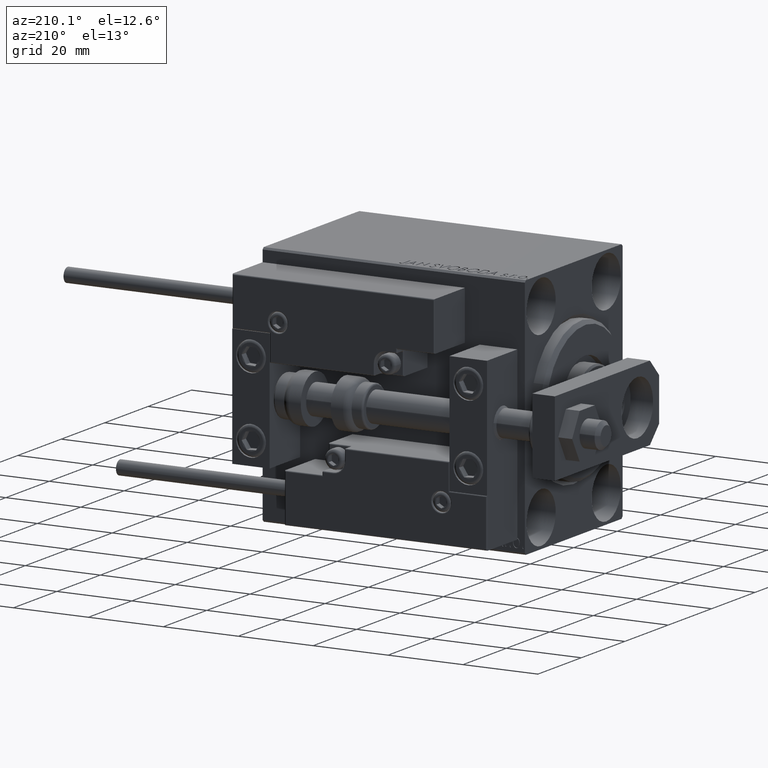
[diagram: clean part render]
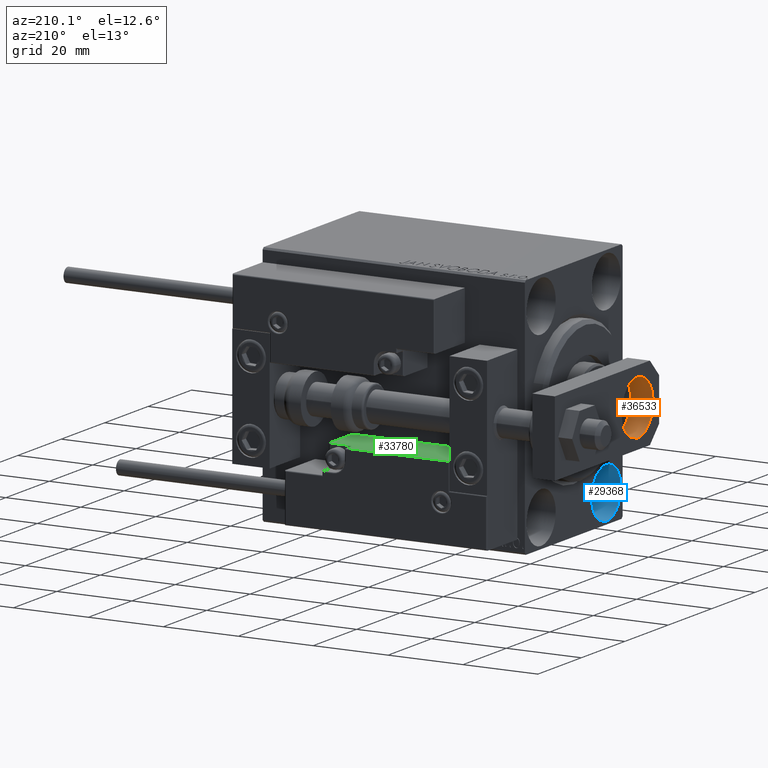
[diagram: same view with three faces highlighted in distinct colors, each labeled with its STEP entity id]
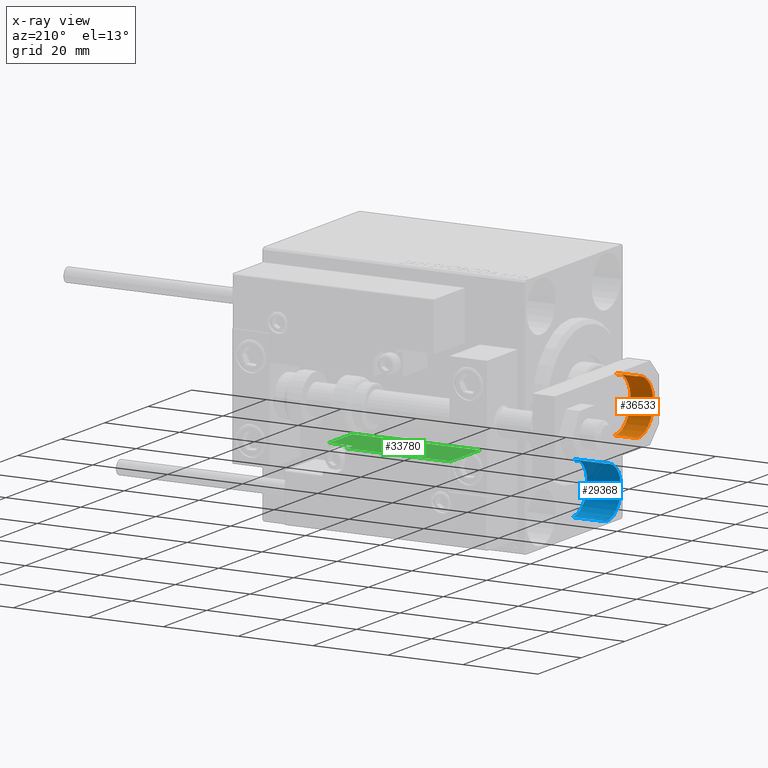
[diagram: x-ray of the same camera — body ghosted, the three highlighted faces saturated]
A machine part, auxiliary view with three faces highlighted in distinct colors.
The next image is the same camera in x-ray (body ghosted, the three faces saturated) — at least one of them is partly hidden behind the body in this view.
Their STEP definitions:

[orange] entity #36533 — the highlighted cylindrical surface (edge-blend (fillet) strip) has radius 7.25 mm, axis along (1, -0, -0).
#1122 = ORIENTED_EDGE ( 'NONE', *, *, #31546, .F. ) ;
#3246 = ORIENTED_EDGE ( 'NONE', *, *, #38588, .T. ) ;
#5588 = CARTESIAN_POINT ( 'NONE',  ( 7.250000000000000000, 10.00000000000000355, 6.000000000000000000 ) ) ;
#11530 = LINE ( 'NONE', #22496, #27409 ) ;
#11976 = DIRECTION ( 'NONE',  ( -1.000000000000000000, 0.000000000000000000, 0.000000000000000000 ) ) ;
#15326 = EDGE_CURVE ( 'NONE', #39872, #22527, #39707, .T. ) ;
#15941 = ORIENTED_EDGE ( 'NONE', *, *, #49616, .F. ) ;
#17327 = CARTESIAN_POINT ( 'NONE',  ( -9.629649721936179265E-32, 10.00000000000000178, 0.000000000000000000 ) ) ;
#17472 = DIRECTION ( 'NONE',  ( 1.000000000000000000, 0.000000000000000000, 0.000000000000000000 ) ) ;
#17830 = DIRECTION ( 'NONE',  ( 0.000000000000000000, 0.000000000000000000, 1.000000000000000000 ) ) ;
#18221 = CARTESIAN_POINT ( 'NONE',  ( -9.629649721936179265E-32, 10.00000000000000178, 6.000000000000000000 ) ) ;
#18667 = CARTESIAN_POINT ( 'NONE',  ( 7.250000000000000000, 10.00000000000000355, 6.000000000000000000 ) ) ;
#20121 = CARTESIAN_POINT ( 'NONE',  ( -9.629649721936179265E-32, 10.00000000000000178, 6.000000000000000000 ) ) ;
#20890 = DIRECTION ( 'NONE',  ( 1.000000000000000000, 0.000000000000000000, 0.000000000000000000 ) ) ;
#21544 = CARTESIAN_POINT ( 'NONE',  ( -7.250000000000000000, 10.00000000000000178, 0.000000000000000000 ) ) ;
#22496 = CARTESIAN_POINT ( 'NONE',  ( -7.250000000000000000, 10.00000000000000178, 6.000000000000000000 ) ) ;
#22527 = VERTEX_POINT ( 'NONE', #28903 ) ;
#25189 = DIRECTION ( 'NONE',  ( -0.000000000000000000, -0.000000000000000000, -1.000000000000000000 ) ) ;
#27409 = VECTOR ( 'NONE', #34684, 1000.000000000000000 ) ;
#28903 = CARTESIAN_POINT ( 'NONE',  ( 7.250000000000000000, 10.00000000000000355, 0.000000000000000000 ) ) ;
#31546 = EDGE_CURVE ( 'NONE', #31974, #22527, #41108, .T. ) ;
#31561 = CYLINDRICAL_SURFACE ( 'NONE', #41684, 7.250000000000000000 ) ;
#31751 = VECTOR ( 'NONE', #25189, 1000.000000000000000 ) ;
#31974 = VERTEX_POINT ( 'NONE', #21544 ) ;
#33015 = AXIS2_PLACEMENT_3D ( 'NONE', #17327, #17830, #20890 ) ;
#33326 = ORIENTED_EDGE ( 'NONE', *, *, #15326, .T. ) ;
#34684 = DIRECTION ( 'NONE',  ( -0.000000000000000000, -0.000000000000000000, -1.000000000000000000 ) ) ;
#35922 = VERTEX_POINT ( 'NONE', #43891 ) ;
#36533 = ADVANCED_FACE ( 'NONE', ( #47090 ), #31561, .F. ) ;
#37050 = DIRECTION ( 'NONE',  ( 0.000000000000000000, 0.000000000000000000, 1.000000000000000000 ) ) ;
#38588 = EDGE_CURVE ( 'NONE', #35922, #39872, #47366, .T. ) ;
#39707 = LINE ( 'NONE', #5588, #31751 ) ;
#39872 = VERTEX_POINT ( 'NONE', #18667 ) ;
#41108 = CIRCLE ( 'NONE', #33015, 7.250000000000000000 ) ;
#41684 = AXIS2_PLACEMENT_3D ( 'NONE', #20121, #47854, #11976 ) ;
#43598 = EDGE_LOOP ( 'NONE', ( #3246, #33326, #1122, #15941 ) ) ;
#43891 = CARTESIAN_POINT ( 'NONE',  ( -7.250000000000000000, 10.00000000000000178, 6.000000000000000000 ) ) ;
#45834 = AXIS2_PLACEMENT_3D ( 'NONE', #18221, #37050, #17472 ) ;
#47090 = FACE_OUTER_BOUND ( 'NONE', #43598, .T. ) ;
#47366 = CIRCLE ( 'NONE', #45834, 7.250000000000000000 ) ;
#47854 = DIRECTION ( 'NONE',  ( -0.000000000000000000, -0.000000000000000000, -1.000000000000000000 ) ) ;
#49616 = EDGE_CURVE ( 'NONE', #35922, #31974, #11530, .T. ) ;

[blue] entity #29368 — the highlighted cylindrical surface (edge-blend (fillet) strip) has radius 6.75 mm, axis along (-1, -0, -0).
#1557 = LINE ( 'NONE', #30031, #25088 ) ;
#1587 = DIRECTION ( 'NONE',  ( 0.000000000000000000, 0.000000000000000000, 1.000000000000000000 ) ) ;
#2304 = DIRECTION ( 'NONE',  ( -1.000000000000000000, -0.000000000000000000, -0.000000000000000000 ) ) ;
#5655 = CARTESIAN_POINT ( 'NONE',  ( 9.000000000000000000, -15.00000000000000355, -25.00000000000000000 ) ) ;
#6262 = VERTEX_POINT ( 'NONE', #21907 ) ;
#7714 = VERTEX_POINT ( 'NONE', #31053 ) ;
#10060 = EDGE_CURVE ( 'NONE', #7714, #6262, #1557, .T. ) ;
#13317 = DIRECTION ( 'NONE',  ( -1.000000000000000000, 0.000000000000000000, 0.000000000000000000 ) ) ;
#13980 = DIRECTION ( 'NONE',  ( 0.000000000000000000, 0.000000000000000000, 1.000000000000000000 ) ) ;
#14237 = DIRECTION ( 'NONE',  ( -1.000000000000000000, -0.000000000000000000, -0.000000000000000000 ) ) ;
#14545 = LINE ( 'NONE', #20980, #34799 ) ;
#15687 = CIRCLE ( 'NONE', #44126, 6.749999999999999112 ) ;
#16894 = DIRECTION ( 'NONE',  ( 0.000000000000000000, 0.000000000000000000, 1.000000000000000000 ) ) ;
#16905 = VERTEX_POINT ( 'NONE', #41778 ) ;
#17120 = DIRECTION ( 'NONE',  ( -1.000000000000000000, 0.000000000000000000, 0.000000000000000000 ) ) ;
#17968 = EDGE_LOOP ( 'NONE', ( #25517, #21030, #19516, #38449 ) ) ;
#18299 = FACE_OUTER_BOUND ( 'NONE', #17968, .T. ) ;
#19516 = ORIENTED_EDGE ( 'NONE', *, *, #27312, .T. ) ;
#20980 = CARTESIAN_POINT ( 'NONE',  ( 9.000000000000000000, -15.00000000000000355, -18.25000000000000355 ) ) ;
#21030 = ORIENTED_EDGE ( 'NONE', *, *, #10060, .T. ) ;
#21867 = CARTESIAN_POINT ( 'NONE',  ( 9.000000000000000000, -15.00000000000000355, -25.00000000000000000 ) ) ;
#21907 = CARTESIAN_POINT ( 'NONE',  ( 0.000000000000000000, -15.00000000000000355, -31.75000000000000000 ) ) ;
#24524 = CARTESIAN_POINT ( 'NONE',  ( 0.000000000000000000, -15.00000000000000355, -25.00000000000000000 ) ) ;
#25088 = VECTOR ( 'NONE', #2304, 1000.000000000000000 ) ;
#25517 = ORIENTED_EDGE ( 'NONE', *, *, #36227, .F. ) ;
#27312 = EDGE_CURVE ( 'NONE', #6262, #16905, #31229, .T. ) ;
#29368 = ADVANCED_FACE ( 'NONE', ( #18299 ), #36633, .F. ) ;
#30031 = CARTESIAN_POINT ( 'NONE',  ( 9.000000000000000000, -15.00000000000000355, -31.75000000000000000 ) ) ;
#31053 = CARTESIAN_POINT ( 'NONE',  ( 9.000000000000000000, -15.00000000000000355, -31.75000000000000000 ) ) ;
#31229 = CIRCLE ( 'NONE', #37737, 6.749999999999999112 ) ;
#33672 = EDGE_CURVE ( 'NONE', #48305, #16905, #14545, .T. ) ;
#34799 = VECTOR ( 'NONE', #37686, 1000.000000000000000 ) ;
#35370 = AXIS2_PLACEMENT_3D ( 'NONE', #21867, #14237, #13980 ) ;
#36227 = EDGE_CURVE ( 'NONE', #7714, #48305, #15687, .T. ) ;
#36633 = CYLINDRICAL_SURFACE ( 'NONE', #35370, 6.749999999999999112 ) ;
#37686 = DIRECTION ( 'NONE',  ( -1.000000000000000000, -0.000000000000000000, -0.000000000000000000 ) ) ;
#37737 = AXIS2_PLACEMENT_3D ( 'NONE', #24524, #13317, #16894 ) ;
#38449 = ORIENTED_EDGE ( 'NONE', *, *, #33672, .F. ) ;
#40671 = CARTESIAN_POINT ( 'NONE',  ( 9.000000000000000000, -15.00000000000000355, -18.25000000000000355 ) ) ;
#41778 = CARTESIAN_POINT ( 'NONE',  ( 0.000000000000000000, -15.00000000000000355, -18.25000000000000355 ) ) ;
#44126 = AXIS2_PLACEMENT_3D ( 'NONE', #5655, #17120, #1587 ) ;
#48305 = VERTEX_POINT ( 'NONE', #40671 ) ;

[green] entity #33780 — the highlighted planar face has unit normal (-0, -0, -1).
#814 = VERTEX_POINT ( 'NONE', #46579 ) ;
#952 = EDGE_CURVE ( 'NONE', #814, #11560, #19584, .T. ) ;
#2076 = CARTESIAN_POINT ( 'NONE',  ( 16.99999999999999289, 3.252606517456513302E-15, 0.000000000000000000 ) ) ;
#2420 = CARTESIAN_POINT ( 'NONE',  ( -16.99999999999999289, 3.252606517456513302E-15, 13.70000000000000107 ) ) ;
#3568 = DIRECTION ( 'NONE',  ( 0.000000000000000000, -0.000000000000000000, 1.000000000000000000 ) ) ;
#4941 = EDGE_CURVE ( 'NONE', #16782, #16595, #8604, .T. ) ;
#5661 = VERTEX_POINT ( 'NONE', #18021 ) ;
#5839 = CARTESIAN_POINT ( 'NONE',  ( 10.70000000000000107, 3.252606517456513302E-15, 13.70000000000000107 ) ) ;
#6020 = CARTESIAN_POINT ( 'NONE',  ( 11.00000000000000000, 3.252606517456513302E-15, 10.69999999999999929 ) ) ;
#6173 = AXIS2_PLACEMENT_3D ( 'NONE', #26280, #11002, #34159 ) ;
#6997 = ORIENTED_EDGE ( 'NONE', *, *, #952, .F. ) ;
#7004 = ORIENTED_EDGE ( 'NONE', *, *, #26912, .T. ) ;
#7494 = ORIENTED_EDGE ( 'NONE', *, *, #50186, .T. ) ;
#8162 = ORIENTED_EDGE ( 'NONE', *, *, #31969, .T. ) ;
#8604 = CIRCLE ( 'NONE', #6173, 0.5999999999999998668 ) ;
#11002 = DIRECTION ( 'NONE',  ( -0.000000000000000000, -1.000000000000000000, -0.000000000000000000 ) ) ;
#11560 = VERTEX_POINT ( 'NONE', #2076 ) ;
#12759 = VECTOR ( 'NONE', #25365, 1000.000000000000000 ) ;
#13003 = ORIENTED_EDGE ( 'NONE', *, *, #34214, .T. ) ;
#15249 = VERTEX_POINT ( 'NONE', #5839 ) ;
#15312 = AXIS2_PLACEMENT_3D ( 'NONE', #16297, #39188, #3568 ) ;
#16297 = CARTESIAN_POINT ( 'NONE',  ( -16.99999999999999289, 3.252606517456513302E-15, 14.00000000000000000 ) ) ;
#16595 = VERTEX_POINT ( 'NONE', #18503 ) ;
#16615 = VECTOR ( 'NONE', #18562, 1000.000000000000000 ) ;
#16782 = VERTEX_POINT ( 'NONE', #31702 ) ;
#17072 = LINE ( 'NONE', #44286, #16615 ) ;
#18021 = CARTESIAN_POINT ( 'NONE',  ( -16.99999999999999289, 3.252606517456513302E-15, 13.70000000000000107 ) ) ;
#18308 = LINE ( 'NONE', #37388, #33950 ) ;
#18503 = CARTESIAN_POINT ( 'NONE',  ( 11.29999999999999893, 3.252606517456513302E-15, 10.69999999999999929 ) ) ;
#18562 = DIRECTION ( 'NONE',  ( 0.000000000000000000, -0.000000000000000000, 1.000000000000000000 ) ) ;
#19584 = LINE ( 'NONE', #43484, #29751 ) ;
#25365 = DIRECTION ( 'NONE',  ( -1.000000000000000000, 0.000000000000000000, -0.000000000000000000 ) ) ;
#25547 = ORIENTED_EDGE ( 'NONE', *, *, #4941, .F. ) ;
#26280 = CARTESIAN_POINT ( 'NONE',  ( 11.29999999999999893, 3.252606517456513302E-15, 11.29999999999999893 ) ) ;
#26912 = EDGE_CURVE ( 'NONE', #16782, #15249, #17072, .T. ) ;
#28899 = DIRECTION ( 'NONE',  ( -1.000000000000000000, 0.000000000000000000, -0.000000000000000000 ) ) ;
#29751 = VECTOR ( 'NONE', #35601, 1000.000000000000000 ) ;
#31214 = VECTOR ( 'NONE', #28899, 1000.000000000000000 ) ;
#31702 = CARTESIAN_POINT ( 'NONE',  ( 10.70000000000000107, 3.252606517456513302E-15, 11.29999999999999893 ) ) ;
#31860 = VERTEX_POINT ( 'NONE', #44710 ) ;
#31969 = EDGE_CURVE ( 'NONE', #814, #16595, #36572, .T. ) ;
#33780 = ADVANCED_FACE ( 'NONE', ( #46831 ), #38694, .F. ) ;
#33950 = VECTOR ( 'NONE', #42895, 1000.000000000000000 ) ;
#33996 = DIRECTION ( 'NONE',  ( -0.000000000000000000, -0.000000000000000000, -1.000000000000000000 ) ) ;
#34159 = DIRECTION ( 'NONE',  ( 0.000000000000000000, 0.000000000000000000, 1.000000000000000000 ) ) ;
#34214 = EDGE_CURVE ( 'NONE', #5661, #31860, #45464, .T. ) ;
#35105 = VECTOR ( 'NONE', #33996, 1000.000000000000000 ) ;
#35601 = DIRECTION ( 'NONE',  ( -0.000000000000000000, -0.000000000000000000, -1.000000000000000000 ) ) ;
#36572 = LINE ( 'NONE', #6020, #12759 ) ;
#36774 = LINE ( 'NONE', #2420, #31214 ) ;
#37388 = CARTESIAN_POINT ( 'NONE',  ( -16.99999999999999289, 3.252606517456513302E-15, 0.000000000000000000 ) ) ;
#37819 = CARTESIAN_POINT ( 'NONE',  ( -16.99999999999999289, 3.252606517456513302E-15, 14.00000000000000000 ) ) ;
#38694 = PLANE ( 'NONE',  #15312 ) ;
#39188 = DIRECTION ( 'NONE',  ( 0.000000000000000000, 1.000000000000000000, 0.000000000000000000 ) ) ;
#42582 = EDGE_CURVE ( 'NONE', #15249, #5661, #36774, .T. ) ;
#42895 = DIRECTION ( 'NONE',  ( 1.000000000000000000, 0.000000000000000000, 0.000000000000000000 ) ) ;
#43484 = CARTESIAN_POINT ( 'NONE',  ( 16.99999999999999289, 3.252606517456513302E-15, 14.00000000000000000 ) ) ;
#44286 = CARTESIAN_POINT ( 'NONE',  ( 10.70000000000000107, 3.252606517456513302E-15, 14.00000000000000000 ) ) ;
#44710 = CARTESIAN_POINT ( 'NONE',  ( -16.99999999999999289, 3.252606517456513302E-15, 0.000000000000000000 ) ) ;
#45464 = LINE ( 'NONE', #37819, #35105 ) ;
#45553 = ORIENTED_EDGE ( 'NONE', *, *, #42582, .T. ) ;
#46579 = CARTESIAN_POINT ( 'NONE',  ( 16.99999999999999289, 3.252606517456513302E-15, 10.69999999999999929 ) ) ;
#46831 = FACE_OUTER_BOUND ( 'NONE', #49828, .T. ) ;
#49828 = EDGE_LOOP ( 'NONE', ( #6997, #8162, #25547, #7004, #45553, #13003, #7494 ) ) ;
#50186 = EDGE_CURVE ( 'NONE', #31860, #11560, #18308, .T. ) ;